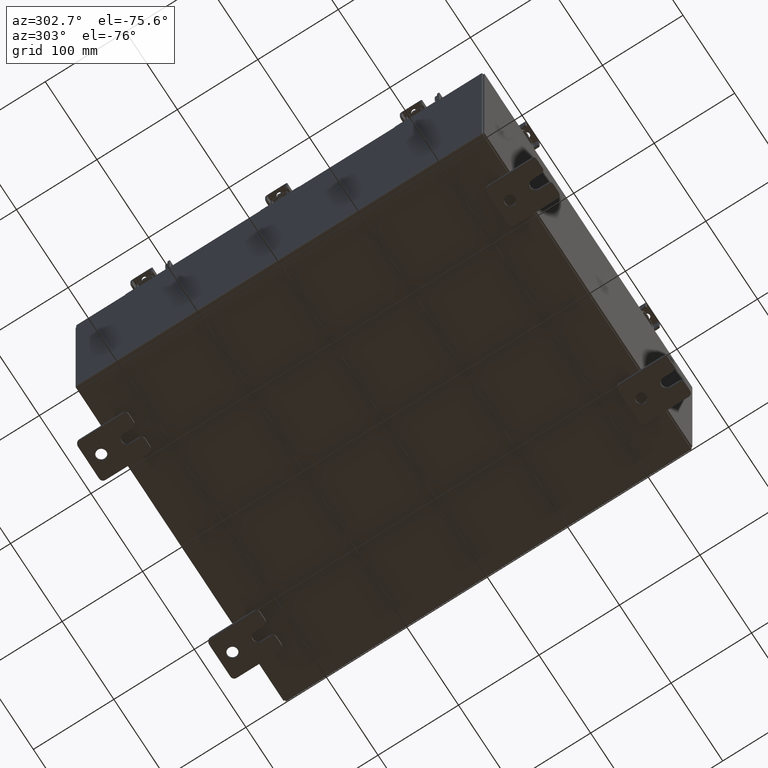
[diagram: clean part render]
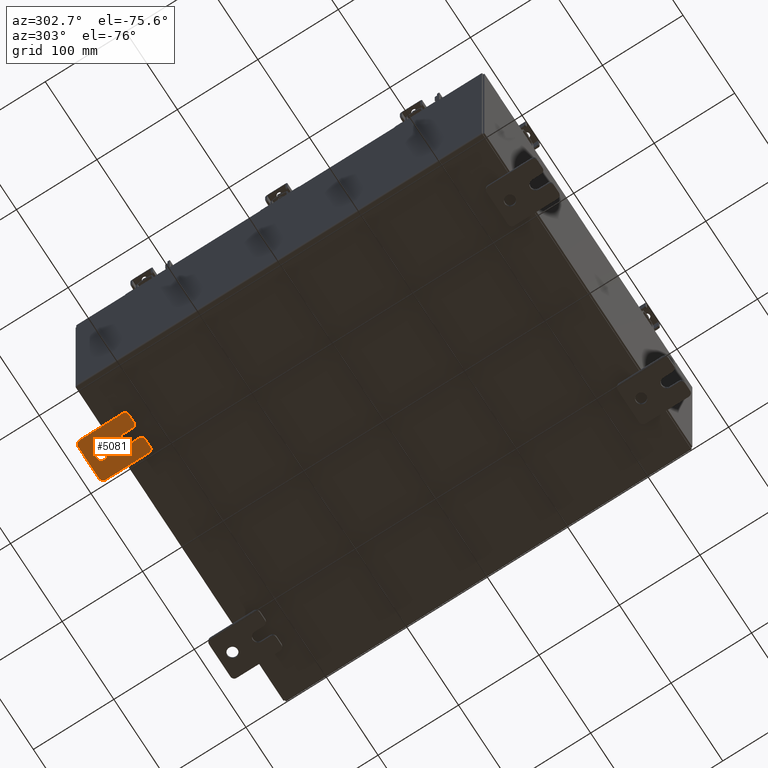
[diagram: same view with one face highlighted and labeled with its STEP entity id]
A machine part, auxiliary view. The second image highlights one B-rep face of the part: STEP entity #5081.
In plain terms, the highlighted planar face has unit normal (0, 0, 1).
Its self-contained STEP definition (entity closure, byte-faithful):
#22 = VERTEX_POINT ( 'NONE', #13837 ) ;
#559 = EDGE_CURVE ( 'NONE', #4594, #5381, #13047, .T. ) ;
#570 = CARTESIAN_POINT ( 'NONE',  ( -0.1879999999999997800, 1.059999999999996300, 0.8099999999999938400 ) ) ;
#890 = CARTESIAN_POINT ( 'NONE',  ( -0.1879999999999997800, -1.060000000000004100, -0.8100000000000050500 ) ) ;
#1242 = ORIENTED_EDGE ( 'NONE', *, *, #19646, .F. ) ;
#1350 = AXIS2_PLACEMENT_3D ( 'NONE', #2018, #14055, #3709 ) ;
#1469 = VERTEX_POINT ( 'NONE', #10222 ) ;
#1622 = VERTEX_POINT ( 'NONE', #19715 ) ;
#1975 = CARTESIAN_POINT ( 'NONE',  ( -0.1879999999999997800, 1.059999999999993400, -1.000000000000010000 ) ) ;
#2018 = CARTESIAN_POINT ( 'NONE',  ( -0.1879999999999997800, 1.059999999999993600, -0.8100000000000089400 ) ) ;
#2323 = DIRECTION ( 'NONE',  ( 0.0000000000000000000, 0.0000000000000000000, -1.000000000000000000 ) ) ;
#2363 = EDGE_CURVE ( 'NONE', #19491, #22, #8418, .T. ) ;
#2634 = DIRECTION ( 'NONE',  ( 0.0000000000000000000, 0.0000000000000000000, -1.000000000000000000 ) ) ;
#2686 = ORIENTED_EDGE ( 'NONE', *, *, #11570, .T. ) ;
#2878 = EDGE_CURVE ( 'NONE', #5761, #1469, #8941, .T. ) ;
#2999 = AXIS2_PLACEMENT_3D ( 'NONE', #890, #12947, #2634 ) ;
#3164 = VECTOR ( 'NONE', #15718, 39.37007874015748100 ) ;
#3709 = DIRECTION ( 'NONE',  ( 0.0000000000000000000, 0.0000000000000000000, -1.000000000000000000 ) ) ;
#3894 = CARTESIAN_POINT ( 'NONE',  ( -0.1879999999999997800, -1.250000000000002200, 0.9999999999999992200 ) ) ;
#4080 = CARTESIAN_POINT ( 'NONE',  ( -0.1879999999999997800, -1.250000000000002200, 0.9999999999999992200 ) ) ;
#4228 = AXIS2_PLACEMENT_3D ( 'NONE', #8538, #20769, #10250 ) ;
#4402 = ORIENTED_EDGE ( 'NONE', *, *, #21948, .T. ) ;
#4594 = VERTEX_POINT ( 'NONE', #6611 ) ;
#4970 = ORIENTED_EDGE ( 'NONE', *, *, #8972, .F. ) ;
#5081 = ADVANCED_FACE ( 'NONE', ( #7493, #16771 ), #16694, .F. ) ;
#5207 = VERTEX_POINT ( 'NONE', #18814 ) ;
#5260 = DIRECTION ( 'NONE',  ( -1.000000000000000000, -0.0000000000000000000, 0.0000000000000000000 ) ) ;
#5343 = CARTESIAN_POINT ( 'NONE',  ( -0.1879999999999997800, -1.250000000000005600, -1.000000000000006200 ) ) ;
#5381 = VERTEX_POINT ( 'NONE', #8650 ) ;
#5394 = DIRECTION ( 'NONE',  ( -6.556435184794182400E-016, -1.000000000000000000, -1.639108796198545600E-016 ) ) ;
#5446 = DIRECTION ( 'NONE',  ( 0.0000000000000000000, -1.000000000000000000, 1.639108796198558100E-015 ) ) ;
#5464 = VERTEX_POINT ( 'NONE', #1975 ) ;
#5737 = VERTEX_POINT ( 'NONE', #12958 ) ;
#5761 = VERTEX_POINT ( 'NONE', #14767 ) ;
#5817 = DIRECTION ( 'NONE',  ( 0.0000000000000000000, -1.639108796198553600E-015, -1.000000000000000000 ) ) ;
#5844 = CARTESIAN_POINT ( 'NONE',  ( -0.1880000000000001900, -0.6249999999999992200, 6.829619984160658000E-017 ) ) ;
#6174 = ORIENTED_EDGE ( 'NONE', *, *, #2878, .F. ) ;
#6211 = EDGE_CURVE ( 'NONE', #19491, #5737, #7803, .T. ) ;
#6267 = CARTESIAN_POINT ( 'NONE',  ( -0.1879999999999997800, 0.0000000000000000000, 0.0000000000000000000 ) ) ;
#6325 = DIRECTION ( 'NONE',  ( 0.0000000000000000000, 1.639108796198553600E-015, 1.000000000000000000 ) ) ;
#6611 = CARTESIAN_POINT ( 'NONE',  ( -0.1879999999999997800, -1.250000000000004700, -0.4400000000000002200 ) ) ;
#6683 = CIRCLE ( 'NONE', #1350, 0.1900000000000011100 ) ;
#6781 = EDGE_CURVE ( 'NONE', #5761, #5737, #17626, .T. ) ;
#6873 = CARTESIAN_POINT ( 'NONE',  ( -0.1879999999999997800, -1.250000000000005300, -0.8100000000000047200 ) ) ;
#7493 = FACE_BOUND ( 'NONE', #19303, .T. ) ;
#7557 = DIRECTION ( 'NONE',  ( -6.829619984160660000E-016, -1.000000000000000000, 0.0000000000000000000 ) ) ;
#7720 = VERTEX_POINT ( 'NONE', #8313 ) ;
#7803 = LINE ( 'NONE', #10638, #12974 ) ;
#7876 = CARTESIAN_POINT ( 'NONE',  ( -0.1879999999999997800, -1.060000000000001600, 0.8099999999999978300 ) ) ;
#7922 = EDGE_CURVE ( 'NONE', #20300, #5464, #6683, .T. ) ;
#7987 = DIRECTION ( 'NONE',  ( 1.000000000000000000, 0.0000000000000000000, -0.0000000000000000000 ) ) ;
#8085 = CARTESIAN_POINT ( 'NONE',  ( -0.1880000000000005800, -1.250000000000003800, 0.2500000000000005000 ) ) ;
#8170 = CARTESIAN_POINT ( 'NONE',  ( -0.1880000000000010000, 0.6249999999999992200, -7.703811342100550500E-020 ) ) ;
#8313 = CARTESIAN_POINT ( 'NONE',  ( -0.1880000000000001900, -0.6249999999999992200, -0.2499999999999998600 ) ) ;
#8418 = CIRCLE ( 'NONE', #18523, 0.1900000000000011100 ) ;
#8538 = CARTESIAN_POINT ( 'NONE',  ( -0.1880000000000010000, 0.6249999999999992200, -7.703811342100550500E-020 ) ) ;
#8575 = ORIENTED_EDGE ( 'NONE', *, *, #17557, .F. ) ;
#8650 = CARTESIAN_POINT ( 'NONE',  ( -0.1880000000000004700, -1.060000000000003400, -0.2499999999999994400 ) ) ;
#8666 = CIRCLE ( 'NONE', #21741, 0.2499999999999999200 ) ;
#8941 = LINE ( 'NONE', #4080, #22344 ) ;
#8972 = EDGE_CURVE ( 'NONE', #20753, #5464, #12866, .T. ) ;
#9611 = DIRECTION ( 'NONE',  ( 0.0000000000000000000, 7.189073667537492800E-016, -1.000000000000000000 ) ) ;
#9886 = DIRECTION ( 'NONE',  ( 0.0000000000000000000, 0.0000000000000000000, -1.000000000000000000 ) ) ;
#9932 = ORIENTED_EDGE ( 'NONE', *, *, #6211, .F. ) ;
#9933 = AXIS2_PLACEMENT_3D ( 'NONE', #7876, #20124, #9611 ) ;
#10001 = LINE ( 'NONE', #21037, #22361 ) ;
#10222 = CARTESIAN_POINT ( 'NONE',  ( -0.1879999999999997800, -1.250000000000003100, 0.4400000000000020000 ) ) ;
#10250 = DIRECTION ( 'NONE',  ( 0.0000000000000000000, 0.0000000000000000000, -1.000000000000000000 ) ) ;
#10456 = DIRECTION ( 'NONE',  ( -1.000000000000000000, -0.0000000000000000000, 0.0000000000000000000 ) ) ;
#10638 = CARTESIAN_POINT ( 'NONE',  ( -0.1879999999999997800, 1.249999999999997600, 0.9999999999999951200 ) ) ;
#11227 = EDGE_CURVE ( 'NONE', #7720, #5381, #10001, .T. ) ;
#11449 = CARTESIAN_POINT ( 'NONE',  ( -0.1879999999999997800, 1.249999999999994200, -1.000000000000010400 ) ) ;
#11563 = ORIENTED_EDGE ( 'NONE', *, *, #18466, .T. ) ;
#11570 = EDGE_CURVE ( 'NONE', #17193, #1622, #8666, .T. ) ;
#11757 = ORIENTED_EDGE ( 'NONE', *, *, #559, .T. ) ;
#12511 = CIRCLE ( 'NONE', #14139, 0.1900000000000011400 ) ;
#12614 = DIRECTION ( 'NONE',  ( -1.000000000000000000, -0.0000000000000000000, 0.0000000000000000000 ) ) ;
#12736 = LINE ( 'NONE', #3894, #14361 ) ;
#12866 = LINE ( 'NONE', #5343, #3164 ) ;
#12947 = DIRECTION ( 'NONE',  ( -1.000000000000000000, -0.0000000000000000000, 0.0000000000000000000 ) ) ;
#12958 = CARTESIAN_POINT ( 'NONE',  ( -0.1879999999999997800, -1.060000000000001200, 0.9999999999999988900 ) ) ;
#12967 = VECTOR ( 'NONE', #6325, 39.37007874015748100 ) ;
#12974 = VECTOR ( 'NONE', #5446, 39.37007874015748100 ) ;
#13047 = CIRCLE ( 'NONE', #17629, 0.1900000000000011100 ) ;
#13605 = ORIENTED_EDGE ( 'NONE', *, *, #6781, .T. ) ;
#13751 = ORIENTED_EDGE ( 'NONE', *, *, #15899, .T. ) ;
#13817 = CARTESIAN_POINT ( 'NONE',  ( -0.1879999999999997800, -1.060000000000004500, -1.000000000000006400 ) ) ;
#13837 = CARTESIAN_POINT ( 'NONE',  ( -0.1879999999999997800, 1.249999999999997300, 0.8099999999999935000 ) ) ;
#13926 = CIRCLE ( 'NONE', #2999, 0.1900000000000011100 ) ;
#14055 = DIRECTION ( 'NONE',  ( -1.000000000000000000, -0.0000000000000000000, 0.0000000000000000000 ) ) ;
#14139 = AXIS2_PLACEMENT_3D ( 'NONE', #15633, #5260, #17444 ) ;
#14361 = VECTOR ( 'NONE', #16004, 39.37007874015748100 ) ;
#14455 = CIRCLE ( 'NONE', #19463, 0.2499999999999999200 ) ;
#14767 = CARTESIAN_POINT ( 'NONE',  ( -0.1879999999999997800, -1.250000000000002400, 0.8099999999999980500 ) ) ;
#14923 = DIRECTION ( 'NONE',  ( 6.556435184794182400E-016, 1.000000000000000000, 0.0000000000000000000 ) ) ;
#15633 = CARTESIAN_POINT ( 'NONE',  ( -0.1879999999999997800, -1.060000000000002100, 0.4400000000000016700 ) ) ;
#15718 = DIRECTION ( 'NONE',  ( 0.0000000000000000000, 1.000000000000000000, -1.639108796198558100E-015 ) ) ;
#15768 = VERTEX_POINT ( 'NONE', #6873 ) ;
#15899 = EDGE_CURVE ( 'NONE', #20753, #15768, #13926, .T. ) ;
#16004 = DIRECTION ( 'NONE',  ( 0.0000000000000000000, -1.639108796198553600E-015, -1.000000000000000000 ) ) ;
#16694 = PLANE ( 'NONE',  #17264 ) ;
#16771 = FACE_OUTER_BOUND ( 'NONE', #18681, .T. ) ;
#17193 = VERTEX_POINT ( 'NONE', #18648 ) ;
#17235 = CARTESIAN_POINT ( 'NONE',  ( -0.1880000000000004700, -1.060000000000002100, 0.2500000000000005000 ) ) ;
#17264 = AXIS2_PLACEMENT_3D ( 'NONE', #6267, #7987, #20239 ) ;
#17353 = CARTESIAN_POINT ( 'NONE',  ( -0.1879999999999997800, 1.059999999999996500, 0.9999999999999953400 ) ) ;
#17444 = DIRECTION ( 'NONE',  ( 0.0000000000000000000, 0.0000000000000000000, -1.000000000000000000 ) ) ;
#17445 = ORIENTED_EDGE ( 'NONE', *, *, #2363, .T. ) ;
#17557 = EDGE_CURVE ( 'NONE', #5207, #7720, #14455, .T. ) ;
#17626 = CIRCLE ( 'NONE', #9933, 0.1900000000000011100 ) ;
#17629 = AXIS2_PLACEMENT_3D ( 'NONE', #22458, #10456, #17636 ) ;
#17636 = DIRECTION ( 'NONE',  ( 0.0000000000000000000, 0.0000000000000000000, -1.000000000000000000 ) ) ;
#17639 = LINE ( 'NONE', #11449, #12967 ) ;
#17678 = VECTOR ( 'NONE', #14923, 39.37007874015748100 ) ;
#18010 = CARTESIAN_POINT ( 'NONE',  ( -0.1879999999999997800, 1.249999999999994700, -0.8100000000000092700 ) ) ;
#18020 = DIRECTION ( 'NONE',  ( -1.000000000000000000, 6.523827964459549700E-016, 5.163192708025532000E-017 ) ) ;
#18466 = EDGE_CURVE ( 'NONE', #18877, #1469, #12511, .T. ) ;
#18523 = AXIS2_PLACEMENT_3D ( 'NONE', #570, #12614, #2323 ) ;
#18648 = CARTESIAN_POINT ( 'NONE',  ( -0.1880000000000010000, 0.6249999999999992200, -0.2499999999999999200 ) ) ;
#18681 = EDGE_LOOP ( 'NONE', ( #6174, #13605, #9932, #17445, #21682, #20434, #4970, #13751, #1242, #11757, #19685, #8575, #19101, #11563 ) ) ;
#18814 = CARTESIAN_POINT ( 'NONE',  ( -0.1880000000000001900, -0.6249999999999992200, 0.2500000000000005000 ) ) ;
#18877 = VERTEX_POINT ( 'NONE', #17235 ) ;
#19101 = ORIENTED_EDGE ( 'NONE', *, *, #19908, .F. ) ;
#19303 = EDGE_LOOP ( 'NONE', ( #2686, #4402 ) ) ;
#19463 = AXIS2_PLACEMENT_3D ( 'NONE', #5844, #18020, #7557 ) ;
#19491 = VERTEX_POINT ( 'NONE', #17353 ) ;
#19646 = EDGE_CURVE ( 'NONE', #4594, #15768, #12736, .T. ) ;
#19685 = ORIENTED_EDGE ( 'NONE', *, *, #11227, .F. ) ;
#19715 = CARTESIAN_POINT ( 'NONE',  ( -0.1880000000000010000, 0.6249999999999992200, 0.2499999999999999200 ) ) ;
#19908 = EDGE_CURVE ( 'NONE', #18877, #5207, #22350, .T. ) ;
#20124 = DIRECTION ( 'NONE',  ( -1.000000000000000000, -0.0000000000000000000, 0.0000000000000000000 ) ) ;
#20239 = DIRECTION ( 'NONE',  ( -0.0000000000000000000, 0.0000000000000000000, -1.000000000000000000 ) ) ;
#20300 = VERTEX_POINT ( 'NONE', #18010 ) ;
#20404 = DIRECTION ( 'NONE',  ( 1.000000000000000000, -0.0000000000000000000, -5.163192708025532000E-017 ) ) ;
#20434 = ORIENTED_EDGE ( 'NONE', *, *, #7922, .T. ) ;
#20753 = VERTEX_POINT ( 'NONE', #13817 ) ;
#20769 = DIRECTION ( 'NONE',  ( 1.000000000000000000, -0.0000000000000000000, -5.163192708025532000E-017 ) ) ;
#20996 = EDGE_CURVE ( 'NONE', #20300, #22, #17639, .T. ) ;
#21037 = CARTESIAN_POINT ( 'NONE',  ( -0.1880000000000001900, -0.6249999999999992200, -0.2499999999999993900 ) ) ;
#21450 = CIRCLE ( 'NONE', #4228, 0.2499999999999999200 ) ;
#21682 = ORIENTED_EDGE ( 'NONE', *, *, #20996, .F. ) ;
#21741 = AXIS2_PLACEMENT_3D ( 'NONE', #8170, #20404, #9886 ) ;
#21948 = EDGE_CURVE ( 'NONE', #1622, #17193, #21450, .T. ) ;
#22344 = VECTOR ( 'NONE', #5817, 39.37007874015748100 ) ;
#22350 = LINE ( 'NONE', #8085, #17678 ) ;
#22361 = VECTOR ( 'NONE', #5394, 39.37007874015748100 ) ;
#22458 = CARTESIAN_POINT ( 'NONE',  ( -0.1879999999999997800, -1.060000000000003400, -0.4400000000000005000 ) ) ;